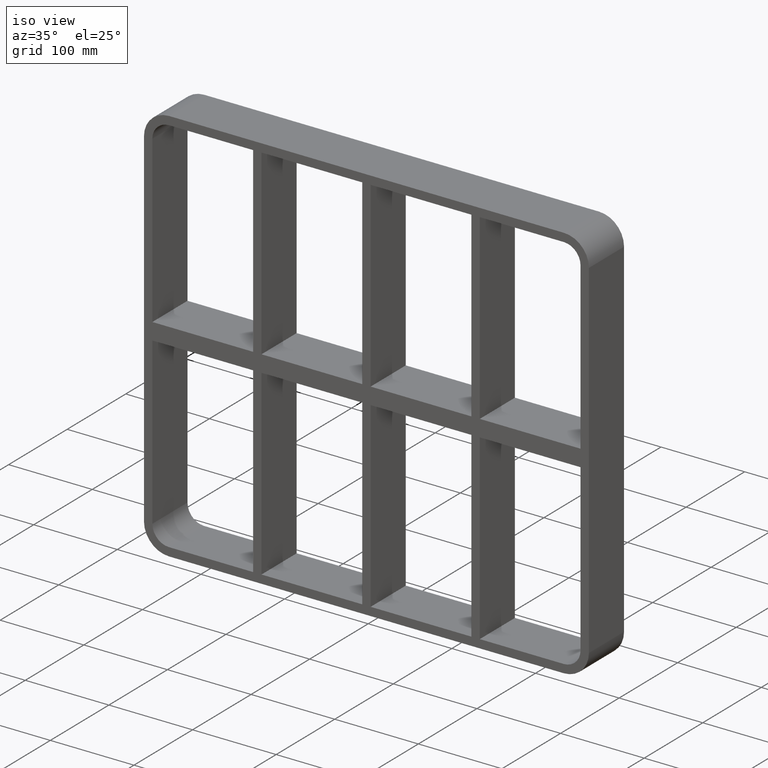
[diagram: clean part render]
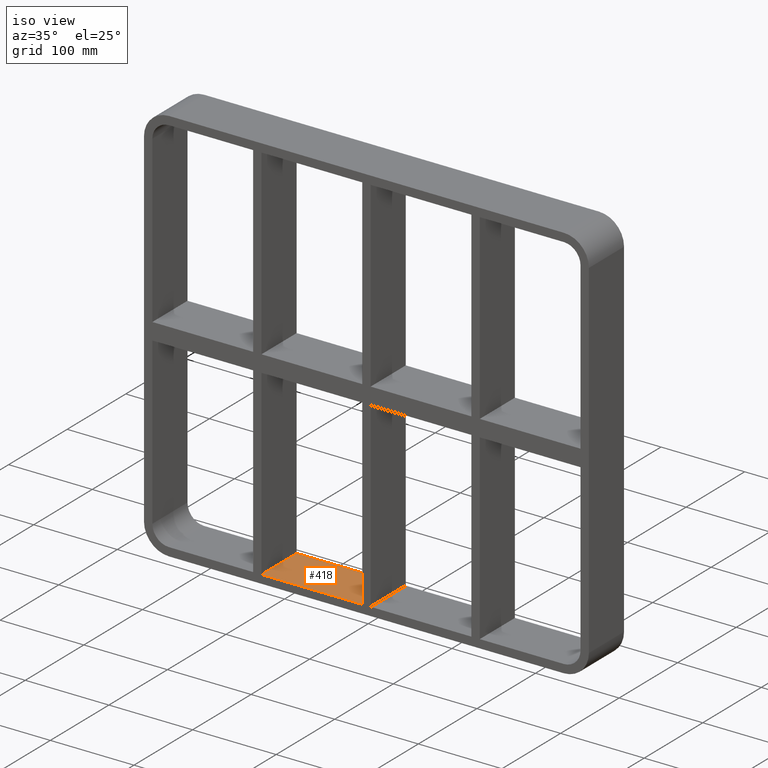
[diagram: same view with one face highlighted and labeled with its STEP entity id]
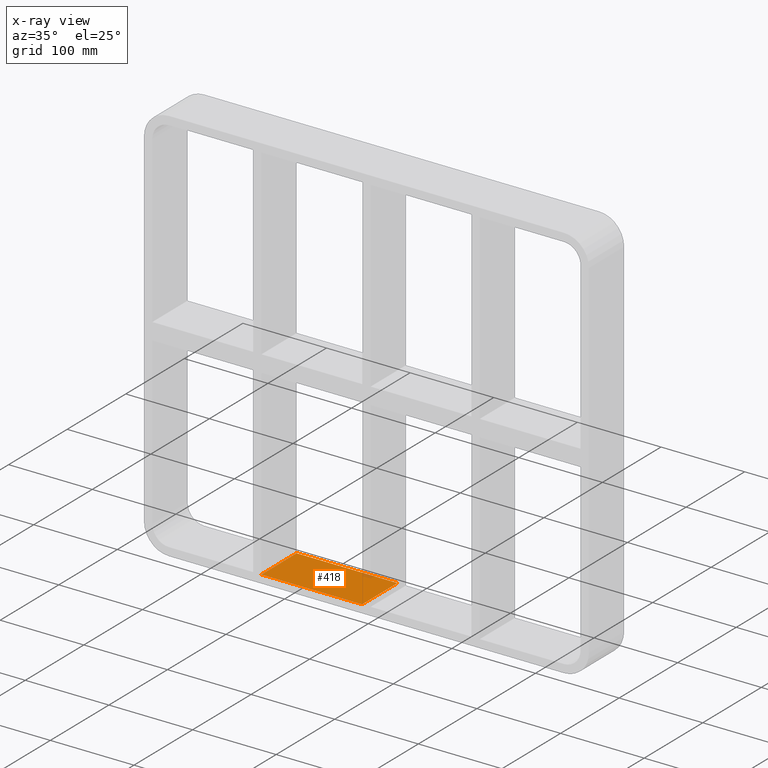
[diagram: x-ray of the same camera — body ghosted, the highlighted face saturated]
A machine part, iso view. The second image highlights one B-rep face of the part: STEP entity #418.
The next image is the same camera in x-ray: the body ghosted, the highlighted face saturated — about 1% of this face is hidden behind the body in this view.
In plain terms, the highlighted planar face has unit normal (0, 0, -1).
Its self-contained STEP definition (entity closure, byte-faithful):
#283=CARTESIAN_POINT('',(-5.000000000001315,57.0,-228.0));
#284=VERTEX_POINT('',#283);
#291=CARTESIAN_POINT('',(-5.000000000001315,-3.0,-228.0));
#292=VERTEX_POINT('',#291);
#293=CARTESIAN_POINT('',(-5.000000000001315,-3.0,-228.0));
#294=DIRECTION('',(0.0,1.0,0.0));
#295=VECTOR('',#294,60.000000000000007);
#296=LINE('',#293,#295);
#297=EDGE_CURVE('',#292,#284,#296,.T.);
#388=CARTESIAN_POINT('',(256.00000000000011,0.0,-228.0));
#389=DIRECTION('',(0.0,0.0,-1.0));
#390=DIRECTION('',(-1.0,0.0,0.0));
#391=AXIS2_PLACEMENT_3D('',#388,#389,#390);
#392=PLANE('',#391);
#393=ORIENTED_EDGE('',*,*,#297,.T.);
#394=CARTESIAN_POINT('',(-125.49999999999272,57.0,-227.99999999998451));
#395=VERTEX_POINT('',#394);
#396=CARTESIAN_POINT('',(-125.49999999999272,57.0,-228.0));
#397=DIRECTION('',(1.0,0.0,0.0));
#398=VECTOR('',#397,120.49999999999142);
#399=LINE('',#396,#398);
#400=EDGE_CURVE('',#395,#284,#399,.T.);
#401=ORIENTED_EDGE('',*,*,#400,.F.);
#402=CARTESIAN_POINT('',(-125.49999999999272,-3.0,-227.99999999998451));
#403=VERTEX_POINT('',#402);
#404=CARTESIAN_POINT('',(-125.49999999999272,57.000000000000007,-228.0));
#405=DIRECTION('',(0.0,-1.0,0.0));
#406=VECTOR('',#405,60.000000000000007);
#407=LINE('',#404,#406);
#408=EDGE_CURVE('',#395,#403,#407,.T.);
#409=ORIENTED_EDGE('',*,*,#408,.T.);
#410=CARTESIAN_POINT('',(-5.000000000001307,-3.0,-228.0));
#411=DIRECTION('',(-1.0,0.0,0.0));
#412=VECTOR('',#411,120.49999999999142);
#413=LINE('',#410,#412);
#414=EDGE_CURVE('',#292,#403,#413,.T.);
#415=ORIENTED_EDGE('',*,*,#414,.F.);
#416=EDGE_LOOP('',(#393,#401,#409,#415));
#417=FACE_OUTER_BOUND('',#416,.T.);
#418=ADVANCED_FACE('',(#417),#392,.F.);